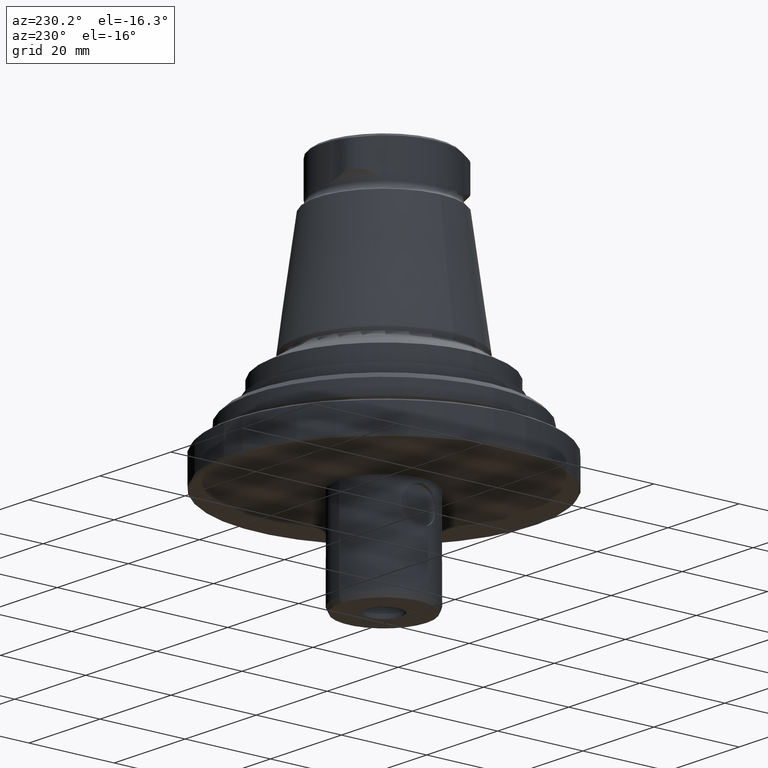
[diagram: clean part render]
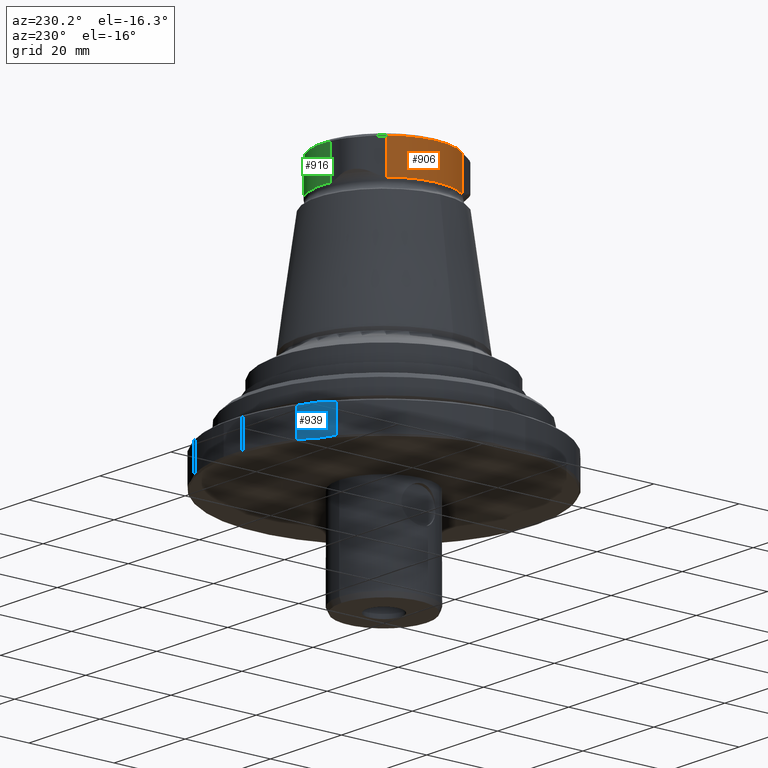
[diagram: same view with three faces highlighted in distinct colors, each labeled with its STEP entity id]
A machine part, auxiliary view with three faces highlighted in distinct colors.
Their STEP definitions:

[orange] entity #906 — the highlighted cylindrical surface (partial cylindrical patch) has radius 14.5 mm, axis along (0, 0, 1).
#25=LINE('',#1489,#53);
#26=LINE('',#1491,#54);
#53=VECTOR('',#1143,1000.);
#54=VECTOR('',#1144,1000.);
#124=CYLINDRICAL_SURFACE('',#997,14.5);
#197=ORIENTED_EDGE('',*,*,#440,.T.);
#198=ORIENTED_EDGE('',*,*,#434,.T.);
#199=ORIENTED_EDGE('',*,*,#441,.F.);
#200=ORIENTED_EDGE('',*,*,#442,.F.);
#434=EDGE_CURVE('',#551,#558,#642,.T.);
#440=EDGE_CURVE('',#562,#551,#25,.T.);
#441=EDGE_CURVE('',#563,#558,#26,.T.);
#442=EDGE_CURVE('',#562,#563,#645,.T.);
#551=VERTEX_POINT('',#1430);
#558=VERTEX_POINT('',#1467);
#562=VERTEX_POINT('',#1490);
#563=VERTEX_POINT('',#1492);
#642=CIRCLE('',#993,14.5);
#645=CIRCLE('',#998,14.5);
#704=EDGE_LOOP('',(#197,#198,#199,#200));
#800=FACE_BOUND('',#704,.T.);
#906=ADVANCED_FACE('',(#800),#124,.T.);
#993=AXIS2_PLACEMENT_3D('',#1469,#1133,#1134);
#997=AXIS2_PLACEMENT_3D('',#1488,#1141,#1142);
#998=AXIS2_PLACEMENT_3D('',#1493,#1145,#1146);
#1133=DIRECTION('',(-4.38328612912168E-16,-8.51929322185263E-24,-1.));
#1134=DIRECTION('',(-1.,9.77164313006873E-16,4.38328610599545E-16));
#1141=DIRECTION('',(5.47430718319515E-16,8.51929311524195E-24,1.));
#1142=DIRECTION('',(1.,-9.77164313006873E-16,-5.47430716006892E-16));
#1143=DIRECTION('',(5.47430718319515E-16,8.51929311524195E-24,1.));
#1144=DIRECTION('',(5.47430718319515E-16,8.51929311524195E-24,1.));
#1145=DIRECTION('',(-4.38328612912168E-16,-8.51929322185263E-24,-1.));
#1146=DIRECTION('',(-1.,9.77164313006873E-16,4.38328610599545E-16));
#1430=CARTESIAN_POINT('',(-11.4297801108245,-8.92245070696412,54.5));
#1467=CARTESIAN_POINT('',(-11.4297801108242,8.92245070696371,54.5));
#1469=CARTESIAN_POINT('',(-6.38744814161624E-14,-9.81645347040286E-14,54.5));
#1488=CARTESIAN_POINT('',(-1.20929723120816E-13,-9.81645355339204E-14,-42.9132268899356));
#1489=CARTESIAN_POINT('',(-11.4297801108245,-8.92245070696412,-42.9132268899356));
#1490=CARTESIAN_POINT('',(-11.4297801108245,-8.92245070696412,46.6780044888597));
#1491=CARTESIAN_POINT('',(-11.4297801108242,8.92245070696371,-42.9132268899356));
#1492=CARTESIAN_POINT('',(-11.4297801108242,8.92245070696371,46.6780044888626));
#1493=CARTESIAN_POINT('',(-6.82790461535123E-14,-9.81645347706665E-14,46.6780044888626));

[blue] entity #939 — the highlighted planar face has unit normal (0.5, -0.866, -0).
#44=LINE('',#1766,#72);
#46=LINE('',#1770,#74);
#72=VECTOR('',#1286,1000.);
#74=VECTOR('',#1292,1000.);
#112=B_SPLINE_CURVE_WITH_KNOTS('',3,(#1683,#1684,#1685,#1686),
 .UNSPECIFIED.,.F.,.F.,(4,4),(0.00301971742095615,0.0105389064051034),
 .UNSPECIFIED.);
#118=B_SPLINE_CURVE_WITH_KNOTS('',3,(#1729,#1730,#1731,#1732),
 .UNSPECIFIED.,.F.,.F.,(4,4),(0.0142564267081391,0.0217467200872314),
 .UNSPECIFIED.);
#354=ORIENTED_EDGE('',*,*,#524,.F.);
#355=ORIENTED_EDGE('',*,*,#510,.F.);
#356=ORIENTED_EDGE('',*,*,#522,.F.);
#357=ORIENTED_EDGE('',*,*,#496,.F.);
#496=EDGE_CURVE('',#602,#603,#112,.T.);
#510=EDGE_CURVE('',#614,#615,#118,.T.);
#522=EDGE_CURVE('',#603,#614,#44,.T.);
#524=EDGE_CURVE('',#615,#602,#46,.F.);
#602=VERTEX_POINT('',#1682);
#603=VERTEX_POINT('',#1687);
#614=VERTEX_POINT('',#1728);
#615=VERTEX_POINT('',#1733);
#748=EDGE_LOOP('',(#354,#355,#356,#357));
#844=FACE_BOUND('',#748,.T.);
#886=PLANE('',#1062);
#939=ADVANCED_FACE('',(#844),#886,.F.);
#1062=AXIS2_PLACEMENT_3D('',#1771,#1293,#1294);
#1286=DIRECTION('',(-5.47430718319515E-16,-9.52839907700963E-18,-1.));
#1292=DIRECTION('',(-5.47430718319515E-16,-9.52839907700963E-18,-1.));
#1293=DIRECTION('',(0.500000000000001,-0.866025403784439,-2.65463496549729E-16));
#1294=DIRECTION('',(-5.47430718319515E-16,-9.52839907700963E-18,-1.));
#1682=CARTESIAN_POINT('',(-14.3911658526401,32.4521855258133,-1.29999999999999));
#1683=CARTESIAN_POINT('',(-14.3911658526401,32.4521855258133,-1.30000000000002));
#1684=CARTESIAN_POINT('',(-16.5539924560934,31.203477004099,-1.03527537313982));
#1685=CARTESIAN_POINT('',(-18.7270089611765,29.9488853399358,-1.03294999360355));
#1686=CARTESIAN_POINT('',(-20.9088341473602,28.6892079813679,-1.30000000000001));
#1687=CARTESIAN_POINT('',(-20.9088341473602,28.6892079813679,-1.29999999999998));
#1728=CARTESIAN_POINT('',(-20.9088341473602,28.6892079813679,-7.69999999999999));
#1729=CARTESIAN_POINT('',(-20.9088341473602,28.6892079813679,-7.69999999999996));
#1730=CARTESIAN_POINT('',(-18.7270089611765,29.9488853399358,-7.96705000639642));
#1731=CARTESIAN_POINT('',(-16.5539924560934,31.203477004099,-7.96472462686015));
#1732=CARTESIAN_POINT('',(-14.3911658526401,32.4521855258133,-7.69999999999996));
#1733=CARTESIAN_POINT('',(-14.3911658526401,32.4521855258133,-7.69999999999999));
#1766=CARTESIAN_POINT('',(-20.9088341473602,28.6892079813679,-0.999999999999985));
#1770=CARTESIAN_POINT('',(-14.3911658526401,32.4521855258133,-0.999999999999989));
#1771=CARTESIAN_POINT('',(-17.6500000000001,30.5706967535906,-4.49999999999998));

[green] entity #916 — the highlighted cylindrical surface (partial cylindrical patch) has radius 14.5 mm, axis along (0, 0, 1).
#33=LINE('',#1565,#61);
#34=LINE('',#1573,#62);
#61=VECTOR('',#1177,1000.);
#62=VECTOR('',#1180,1000.);
#132=CYLINDRICAL_SURFACE('',#1011,14.5);
#237=ORIENTED_EDGE('',*,*,#463,.T.);
#238=ORIENTED_EDGE('',*,*,#436,.T.);
#239=ORIENTED_EDGE('',*,*,#461,.F.);
#240=ORIENTED_EDGE('',*,*,#464,.F.);
#436=EDGE_CURVE('',#559,#554,#644,.T.);
#461=EDGE_CURVE('',#574,#554,#33,.T.);
#463=EDGE_CURVE('',#575,#559,#34,.T.);
#464=EDGE_CURVE('',#575,#574,#649,.T.);
#554=VERTEX_POINT('',#1448);
#559=VERTEX_POINT('',#1468);
#574=VERTEX_POINT('',#1566);
#575=VERTEX_POINT('',#1574);
#644=CIRCLE('',#995,14.5);
#649=CIRCLE('',#1012,14.5);
#714=EDGE_LOOP('',(#237,#238,#239,#240));
#810=FACE_BOUND('',#714,.T.);
#916=ADVANCED_FACE('',(#810),#132,.T.);
#995=AXIS2_PLACEMENT_3D('',#1471,#1137,#1138);
#1011=AXIS2_PLACEMENT_3D('',#1572,#1178,#1179);
#1012=AXIS2_PLACEMENT_3D('',#1575,#1181,#1182);
#1137=DIRECTION('',(-4.38328612912168E-16,-8.51929322185263E-24,-1.));
#1138=DIRECTION('',(-1.,9.77164313006873E-16,4.38328610599545E-16));
#1177=DIRECTION('',(5.47430718319515E-16,8.51929311524195E-24,1.));
#1178=DIRECTION('',(5.47430718319515E-16,8.51929311524195E-24,1.));
#1179=DIRECTION('',(1.,-9.77164313006873E-16,-5.47430716006892E-16));
#1180=DIRECTION('',(5.47430718319515E-16,8.51929311524195E-24,1.));
#1181=DIRECTION('',(-4.38328612912168E-16,-8.51929322185263E-24,-1.));
#1182=DIRECTION('',(-1.,9.77164313006873E-16,4.38328610599545E-16));
#1448=CARTESIAN_POINT('',(13.4419590316581,5.4372545821627,54.499999999999));
#1468=CARTESIAN_POINT('',(-2.01217892083196,14.3597052891265,54.4999999999997));
#1471=CARTESIAN_POINT('',(-6.38744814161624E-14,-9.81645347040286E-14,54.5));
#1565=CARTESIAN_POINT('',(13.4419590316581,5.4372545821627,-42.9132268899356));
#1566=CARTESIAN_POINT('',(13.4419590316582,5.43725458216255,46.6780044888655));
#1572=CARTESIAN_POINT('',(7.28146633840291E-13,3.89155110133425E-13,-42.9132268899356));
#1573=CARTESIAN_POINT('',(-2.01217892083201,14.3597052891265,-42.9132268899356));
#1574=CARTESIAN_POINT('',(-2.01217892083196,14.3597052891265,46.6780044888637));
#1575=CARTESIAN_POINT('',(-6.82790461535123E-14,-9.81645347706665E-14,46.6780044888626));